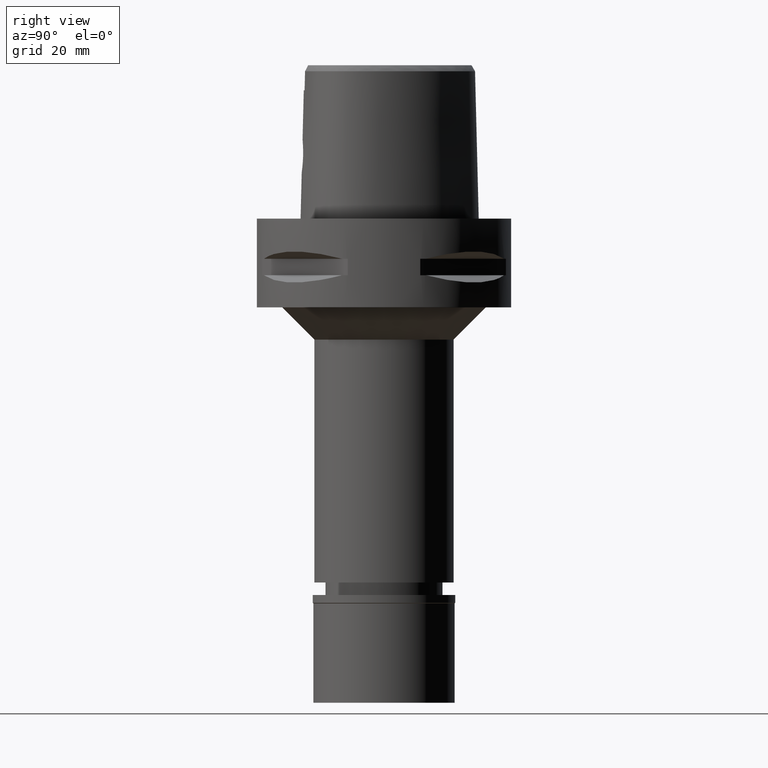
[diagram: clean part render]
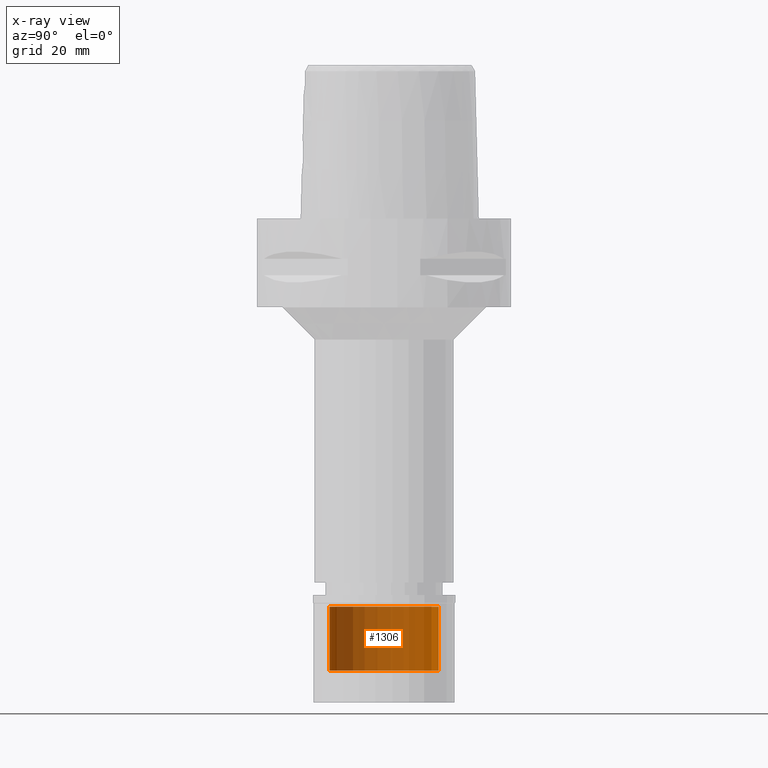
[diagram: x-ray — body ghosted, one internal face saturated and labeled with its STEP entity id]
A machine part, right view, then the same camera in x-ray: the body is ghosted and one INTERNAL B-rep face — a face not visible from any outside direction — is saturated and labeled: STEP entity #1306.
In plain terms, the highlighted cylindrical surface (partial cylindrical patch) has radius 13.5 mm, axis along (0, 0, -1).
Its self-contained STEP definition (entity closure, byte-faithful):
#67 = CIRCLE ( 'NONE', #2159, 13.50000000000000000 ) ;
#124 = VERTEX_POINT ( 'NONE', #1216 ) ;
#311 = VERTEX_POINT ( 'NONE', #3046 ) ;
#334 = EDGE_LOOP ( 'NONE', ( #3132, #3716, #901, #2813 ) ) ;
#894 = DIRECTION ( 'NONE',  ( 0.0000000000000000000, 1.000000000000000000, 0.0000000000000000000 ) ) ;
#901 = ORIENTED_EDGE ( 'NONE', *, *, #2562, .T. ) ;
#1147 = CARTESIAN_POINT ( 'NONE',  ( 0.0000000000000000000, -13.50000000000000000, -2.899999999999999911 ) ) ;
#1216 = CARTESIAN_POINT ( 'NONE',  ( 0.0000000000000000000, 13.50000000000000000, -2.899999999999999911 ) ) ;
#1279 = DIRECTION ( 'NONE',  ( 0.0000000000000000000, 0.0000000000000000000, 1.000000000000000000 ) ) ;
#1306 = ADVANCED_FACE ( 'NONE', ( #4068 ), #1313, .F. ) ;
#1313 = CYLINDRICAL_SURFACE ( 'NONE', #3706, 13.50000000000000000 ) ;
#1322 = DIRECTION ( 'NONE',  ( 0.0000000000000000000, 0.0000000000000000000, 1.000000000000000000 ) ) ;
#1887 = EDGE_CURVE ( 'NONE', #124, #4945, #67, .T. ) ;
#1966 = EDGE_CURVE ( 'NONE', #3292, #4945, #3160, .T. ) ;
#2111 = DIRECTION ( 'NONE',  ( 0.0000000000000000000, -1.000000000000000000, 0.0000000000000000000 ) ) ;
#2159 = AXIS2_PLACEMENT_3D ( 'NONE', #4026, #2456, #894 ) ;
#2222 = DIRECTION ( 'NONE',  ( 0.0000000000000000000, 0.0000000000000000000, -1.000000000000000000 ) ) ;
#2456 = DIRECTION ( 'NONE',  ( 0.0000000000000000000, 0.0000000000000000000, 1.000000000000000000 ) ) ;
#2562 = EDGE_CURVE ( 'NONE', #3292, #311, #4440, .T. ) ;
#2738 = VECTOR ( 'NONE', #1322, 1000.000000000000000 ) ;
#2741 = AXIS2_PLACEMENT_3D ( 'NONE', #4463, #2222, #4126 ) ;
#2813 = ORIENTED_EDGE ( 'NONE', *, *, #3565, .T. ) ;
#2913 = CARTESIAN_POINT ( 'NONE',  ( 0.0000000000000000000, 0.0000000000000000000, 0.0000000000000000000 ) ) ;
#3046 = CARTESIAN_POINT ( 'NONE',  ( 0.0000000000000000000, 13.50000000000000000, -18.70000000000000284 ) ) ;
#3132 = ORIENTED_EDGE ( 'NONE', *, *, #1887, .T. ) ;
#3160 = LINE ( 'NONE', #4700, #2738 ) ;
#3292 = VERTEX_POINT ( 'NONE', #4321 ) ;
#3565 = EDGE_CURVE ( 'NONE', #311, #124, #4774, .T. ) ;
#3706 = AXIS2_PLACEMENT_3D ( 'NONE', #2913, #4910, #2111 ) ;
#3716 = ORIENTED_EDGE ( 'NONE', *, *, #1966, .F. ) ;
#3745 = CARTESIAN_POINT ( 'NONE',  ( 0.0000000000000000000, 13.50000000000000000, -18.70000000000000284 ) ) ;
#3806 = VECTOR ( 'NONE', #1279, 1000.000000000000000 ) ;
#4026 = CARTESIAN_POINT ( 'NONE',  ( 0.0000000000000000000, 0.0000000000000000000, -2.899999999999999911 ) ) ;
#4068 = FACE_OUTER_BOUND ( 'NONE', #334, .T. ) ;
#4126 = DIRECTION ( 'NONE',  ( 0.0000000000000000000, -1.000000000000000000, 0.0000000000000000000 ) ) ;
#4321 = CARTESIAN_POINT ( 'NONE',  ( 0.0000000000000000000, -13.50000000000000000, -18.70000000000000284 ) ) ;
#4440 = CIRCLE ( 'NONE', #2741, 13.50000000000000000 ) ;
#4463 = CARTESIAN_POINT ( 'NONE',  ( 0.0000000000000000000, 0.0000000000000000000, -18.70000000000000284 ) ) ;
#4700 = CARTESIAN_POINT ( 'NONE',  ( 0.0000000000000000000, -13.50000000000000000, -18.70000000000000284 ) ) ;
#4774 = LINE ( 'NONE', #3745, #3806 ) ;
#4910 = DIRECTION ( 'NONE',  ( 0.0000000000000000000, 0.0000000000000000000, -1.000000000000000000 ) ) ;
#4945 = VERTEX_POINT ( 'NONE', #1147 ) ;